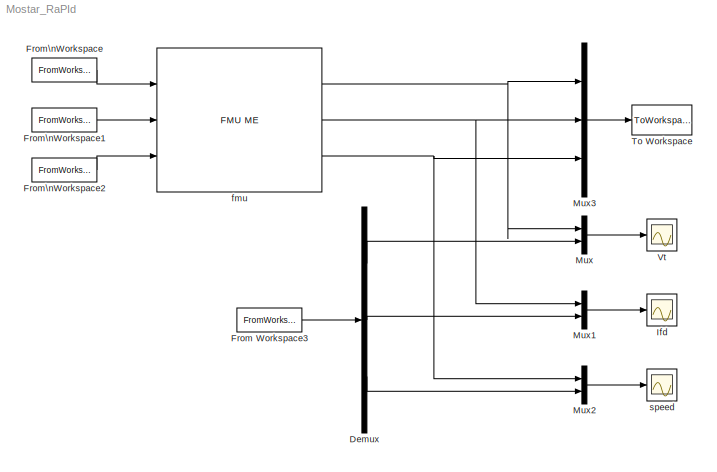
MODEL Mostar_RaPId
KIND model
BLOCK [Demux] Demux
  Outputs = 3
  Ports = [1, 3]
  SID = 83
BLOCK [FromWorkspace] From Workspace3
  SID = 84
  VariableName = dataMeasuredS
BLOCK [FromWorkspace] From\nWorkspace
  SID = 73
  VariableName = inputSignalS(:,[1,2])
BLOCK [FromWorkspace] From\nWorkspace1
  SID = 74
  VariableName = inputSignalS(:,[1,3])
BLOCK [FromWorkspace] From\nWorkspace2
  SID = 75
  VariableName = inputSignalS(:,[1,4])
BLOCK [Scope] Ifd
  Floating = off
  NumInputPorts = 1
  Ports = [1]
  SID = 63
  ScopeSpecificationString = Simulink.scopes.TimeScopeBlockCfg('CurrentConfiguration', extmgr.ConfigurationSet(extmgr.Configuration('Core','General UI',true,'FigureColor',[1 1 1]),extmgr.Configuration('Core','Source UI',true),extmgr.Configuration('Sources','WiredSimulink',true,'DataLoggingVariableName','ScopeData4'),extmgr.Configuration('Visuals','Time Domain',true,'SerializedDisplays',{struct('MinYLimReal','0.90789','MaxYLim...<+1464ch>
BLOCK [Mux] Mux
  DisplayOption = bar
  Inputs = 2
  Ports = [2, 1]
  SID = 85
BLOCK [Mux] Mux1
  DisplayOption = bar
  Inputs = 2
  Ports = [2, 1]
  SID = 86
BLOCK [Mux] Mux2
  DisplayOption = bar
  Inputs = 2
  Ports = [2, 1]
  SID = 87
BLOCK [Mux] Mux3
  DisplayOption = bar
  Inputs = 3
  Ports = [3, 1]
  SID = 76
BLOCK [ToWorkspace] To Workspace
  MaxDataPoints = inf
  Ports = [1]
  SID = 82
  SampleTime = -1
  SaveFormat = Structure With Time
  VariableName = simout
BLOCK [Scope] Vt
  Floating = off
  NumInputPorts = 1
  Ports = [1]
  SID = 52
  ScopeSpecificationString = Simulink.scopes.TimeScopeBlockCfg('CurrentConfiguration', extmgr.ConfigurationSet(extmgr.Configuration('Core','General UI',true,'FigureColor',[1 1 1]),extmgr.Configuration('Core','Source UI',true),extmgr.Configuration('Sources','WiredSimulink',true),extmgr.Configuration('Visuals','Time Domain',true,'SerializedDisplays',{struct('MinYLimReal','0.78881','MaxYLimReal','1.18025','YLabelReal','','MinYLi...<+1425ch>
BLOCK [Reference] fmu  REF=fmu_me_lib/FMU ME
  Description = Simulates an FMU for Model Exchange 1.0 or Model Exchange 2.0.
  MultiThreadCoSim = auto
  Ports = [3, 3]
  SID = 81
  SourceBlock = fmu_me_lib/FMU ME
  UserData = DataTag0
  UserDataPersistent = on
  dummy = 0
BLOCK [Scope] speed
  Floating = off
  NumInputPorts = 1
  Ports = [1]
  SID = 72
  ScopeSpecificationString = Simulink.scopes.TimeScopeBlockCfg('CurrentConfiguration', extmgr.ConfigurationSet(extmgr.Configuration('Core','General UI',true,'FigureColor',[1 1 1]),extmgr.Configuration('Core','Source UI',true),extmgr.Configuration('Sources','WiredSimulink',true,'DataLoggingVariableName','ScopeData1'),extmgr.Configuration('Visuals','Time Domain',true,'SerializedDisplays',{struct('MinYLimReal','-0.00224','MaxYLi...<+1466ch>
LINE Demux:1 -> Mux:2
LINE Demux:2 -> Mux1:2
LINE Demux:3 -> Mux2:2
LINE From Workspace3:1 -> Demux:1
LINE From\nWorkspace1:1 -> fmu:2
LINE From\nWorkspace2:1 -> fmu:3
LINE From\nWorkspace:1 -> fmu:1
LINE Mux1:1 -> Ifd:1
LINE Mux2:1 -> speed:1
LINE Mux3:1 -> To Workspace:1
LINE Mux:1 -> Vt:1
NET fmu:1 -> Mux3:1, Mux:1
NET fmu:2 -> Mux1:1, Mux3:2
NET fmu:3 -> Mux2:1, Mux3:3
note: NET lines group one-source signal fan-out (src -> all destinations, sorted); 1:1 wires keep LINE
